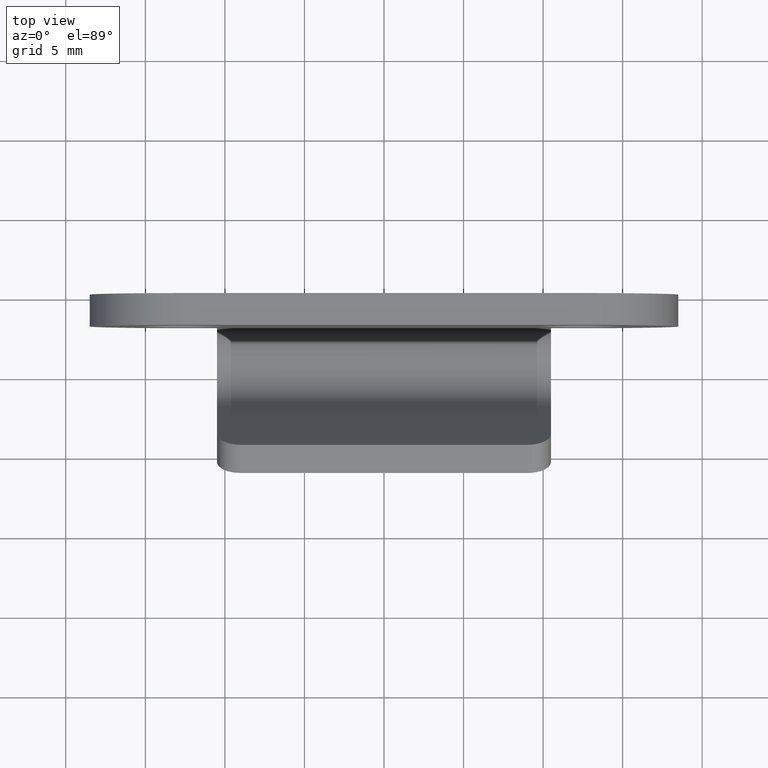
[diagram: clean part render]
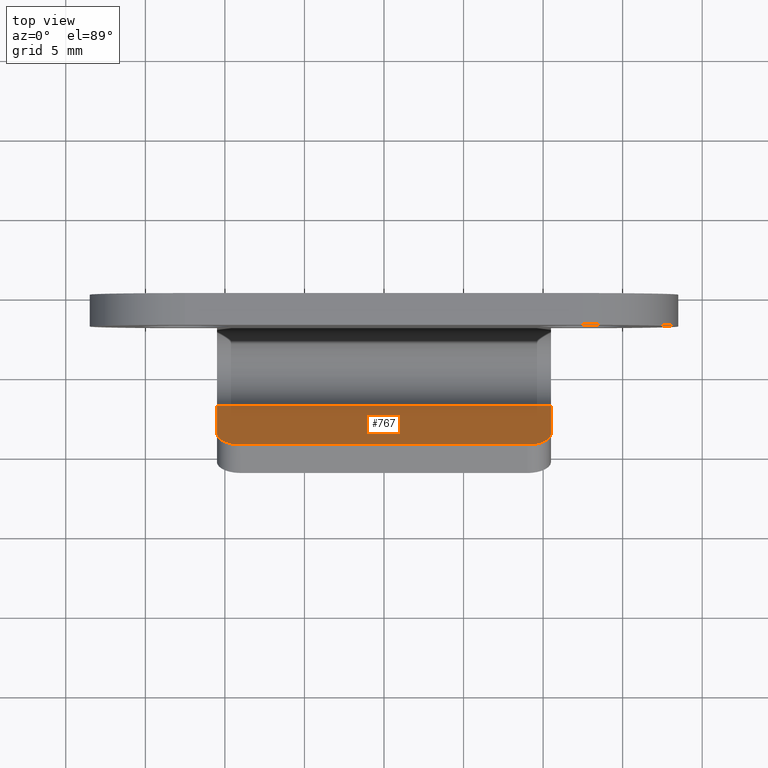
[diagram: same view with one face highlighted and labeled with its STEP entity id]
A machine part, top view. The second image highlights one B-rep face of the part: STEP entity #767.
In plain terms, the highlighted face is a freeform B-spline surface patch.
Its self-contained STEP definition (entity closure, byte-faithful):
#447=CARTESIAN_POINT('',(-9.0,-9.244999999999999,-17.0));
#448=VERTEX_POINT('',#447);
#454=CARTESIAN_POINT('',(-10.500000000000000,-8.529161378109500,-18.318176928536150));
#455=VERTEX_POINT('',#454);
#456=CARTESIAN_POINT('',(-10.500000000000000,-8.529161378109500,-18.318176928536150));
#457=CARTESIAN_POINT('',(-10.499999999999998,-9.245000000000005,-16.999999999999925));
#458=CARTESIAN_POINT('',(-9.0,-9.244999999999999,-17.0));
#466=(BOUNDED_CURVE()B_SPLINE_CURVE(2,(#456,#457,#458),.UNSPECIFIED.,.F.,.U.)CURVE()GEOMETRIC_REPRESENTATION_ITEM()QUASI_UNIFORM_CURVE()RATIONAL_B_SPLINE_CURVE((1.0,0.707106781186547,1.0))REPRESENTATION_ITEM(''));
#467=EDGE_CURVE('',#455,#448,#466,.T.);
#508=CARTESIAN_POINT('',(10.500000000000000,-8.529161378109500,-18.318176928536150));
#509=VERTEX_POINT('',#508);
#515=CARTESIAN_POINT('',(9.0,-9.244999999999999,-17.0));
#516=VERTEX_POINT('',#515);
#517=CARTESIAN_POINT('',(9.0,-9.244999999999999,-17.0));
#518=CARTESIAN_POINT('',(9.621320003108027,-9.245000095174039,-16.999999824742236));
#519=CARTESIAN_POINT('',(10.060660001554011,-9.035335803119635,-17.386084933972729));
#520=CARTESIAN_POINT('',(10.499999999999998,-8.825671511065231,-17.772170043203218));
#521=CARTESIAN_POINT('',(10.500000000000000,-8.529161378109500,-18.318176928536150));
#529=(BOUNDED_CURVE()B_SPLINE_CURVE(2,(#517,#518,#519,#520,#521),.UNSPECIFIED.,.F.,.U.)B_SPLINE_CURVE_WITH_KNOTS((3,2,3),(0.0,0.500000000000000,1.0),.UNSPECIFIED.)CURVE()GEOMETRIC_REPRESENTATION_ITEM()RATIONAL_B_SPLINE_CURVE((1.0,0.923879501802773,1.0,0.923879501802773,1.0))REPRESENTATION_ITEM(''));
#530=EDGE_CURVE('',#516,#509,#529,.T.);
#734=CARTESIAN_POINT('',(-11.548949959297930,-6.593424940804961,-21.882727699271339));
#735=CARTESIAN_POINT('',(-11.548949959297930,-9.371145283520935,-16.767710490470868));
#736=CARTESIAN_POINT('',(11.548950522561819,-6.593424940804962,-21.882727699271339));
#737=CARTESIAN_POINT('',(11.548950522561819,-9.371145283520935,-16.767710490470868));
#738=B_SPLINE_SURFACE_WITH_KNOTS('',1,1,((#734,#736),(#735,#737)),.UNSPECIFIED.,.F.,.F.,.U.,(2,2),(2,2),(0.0,5.820578265830905),(0.0,23.097900481859750),.UNSPECIFIED.);
#739=CARTESIAN_POINT('',(9.0,-9.244999999999999,-17.0));
#740=CARTESIAN_POINT('',(-9.0,-9.244999999999999,-17.0));
#741=QUASI_UNIFORM_CURVE('',1,(#739,#740),.UNSPECIFIED.,.F.,.U.);
#742=EDGE_CURVE('',#516,#448,#741,.T.);
#743=ORIENTED_EDGE('',*,*,#742,.F.);
#744=ORIENTED_EDGE('',*,*,#530,.T.);
#745=CARTESIAN_POINT('',(10.500000000000000,-6.719570179167660,-21.650438272898501));
#746=VERTEX_POINT('',#745);
#747=CARTESIAN_POINT('',(10.500000000000000,-8.529161378109500,-18.318176928536150));
#748=CARTESIAN_POINT('',(10.500000000000000,-6.719570179167660,-21.650438272898501));
#749=QUASI_UNIFORM_CURVE('',1,(#747,#748),.UNSPECIFIED.,.F.,.U.);
#750=EDGE_CURVE('',#509,#746,#749,.T.);
#751=ORIENTED_EDGE('',*,*,#750,.T.);
#752=CARTESIAN_POINT('',(-10.500000000000000,-6.719570179167660,-21.650438272898501));
#753=VERTEX_POINT('',#752);
#754=CARTESIAN_POINT('',(10.500000000000000,-6.719570179167660,-21.650438272898501));
#755=CARTESIAN_POINT('',(-10.500000000000000,-6.719570179167660,-21.650438272898501));
#756=QUASI_UNIFORM_CURVE('',1,(#754,#755),.UNSPECIFIED.,.F.,.U.);
#757=EDGE_CURVE('',#746,#753,#756,.T.);
#758=ORIENTED_EDGE('',*,*,#757,.T.);
#759=CARTESIAN_POINT('',(-10.500000000000000,-8.529161378109500,-18.318176928536150));
#760=CARTESIAN_POINT('',(-10.500000000000000,-6.719570179167660,-21.650438272898501));
#761=QUASI_UNIFORM_CURVE('',1,(#759,#760),.UNSPECIFIED.,.F.,.U.);
#762=EDGE_CURVE('',#455,#753,#761,.T.);
#763=ORIENTED_EDGE('',*,*,#762,.F.);
#764=ORIENTED_EDGE('',*,*,#467,.T.);
#765=EDGE_LOOP('',(#743,#744,#751,#758,#763,#764));
#766=FACE_OUTER_BOUND('',#765,.T.);
#767=ADVANCED_FACE('',(#766),#738,.T.);